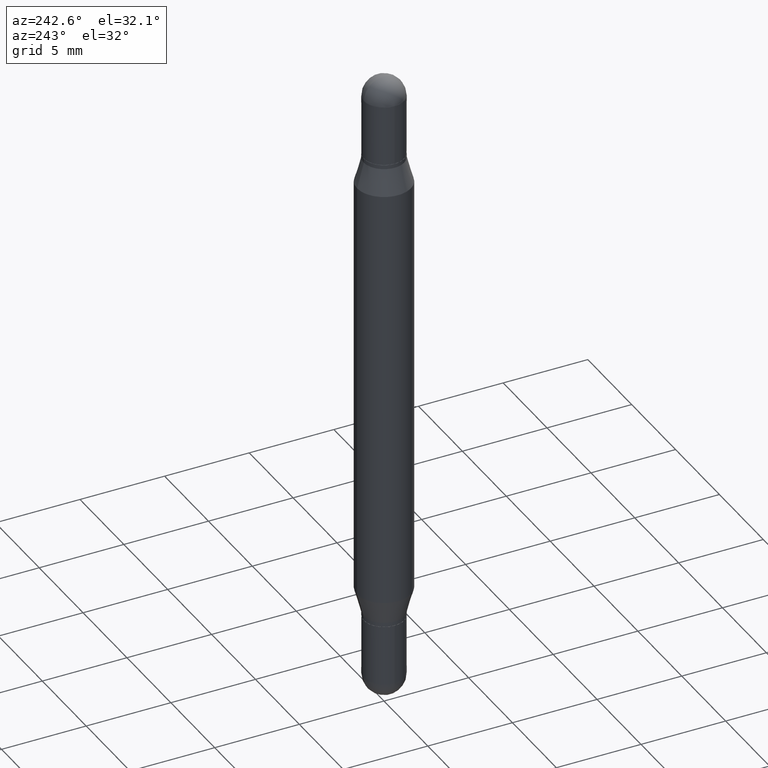
[diagram: clean part render]
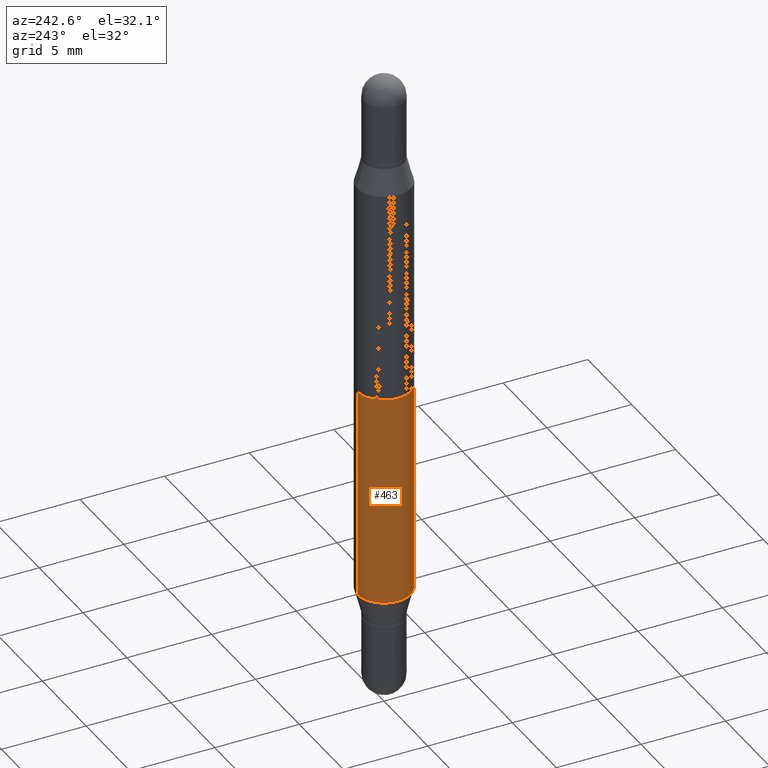
[diagram: same view with one face highlighted and labeled with its STEP entity id]
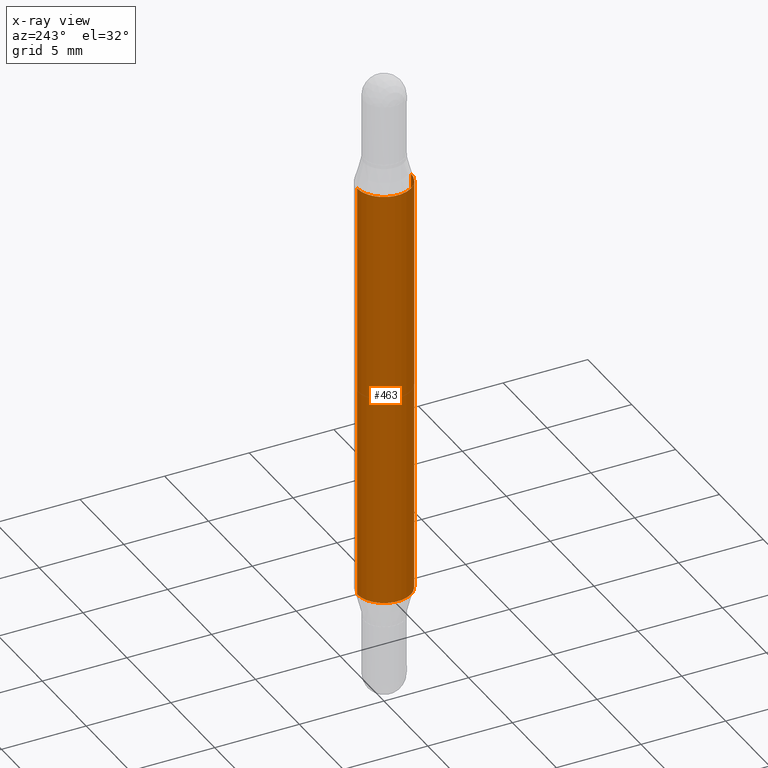
[diagram: x-ray of the same camera — body ghosted, the highlighted face saturated]
A machine part, auxiliary view. The second image highlights one B-rep face of the part: STEP entity #463.
The next image is the same camera in x-ray: the body ghosted, the highlighted face saturated — about 0% of this face is hidden behind the body in this view.
In plain terms, the highlighted cylindrical surface (edge-blend (fillet) strip) has radius 1.5875 mm, axis along (-0, -0, -1).
Its self-contained STEP definition (entity closure, byte-faithful):
#13 = ORIENTED_EDGE ( 'NONE', *, *, #359, .T. ) ;
#82 = FACE_OUTER_BOUND ( 'NONE', #450, .T. ) ;
#87 = DIRECTION ( 'NONE',  ( -2.445369915949094942E-29, -3.479472850531334102E-15, -1.000000000000000000 ) ) ;
#100 = CARTESIAN_POINT ( 'NONE',  ( 4.287811248607206733E-16, 0.06249999999999477501, -1.499999999999999778 ) ) ;
#107 = ORIENTED_EDGE ( 'NONE', *, *, #366, .F. ) ;
#139 = VECTOR ( 'NONE', #528, 39.37007874015748143 ) ;
#141 = CIRCLE ( 'NONE', #196, 0.06250000000000000000 ) ;
#170 = LINE ( 'NONE', #100, #802 ) ;
#196 = AXIS2_PLACEMENT_3D ( 'NONE', #708, #201, #871 ) ;
#201 = DIRECTION ( 'NONE',  ( 2.445369915949094661E-29, 3.479472850531333708E-15, 1.000000000000000000 ) ) ;
#216 = EDGE_CURVE ( 'NONE', #670, #490, #809, .T. ) ;
#282 = DIRECTION ( 'NONE',  ( -6.982962677686265922E-15, -1.000000000000000000, 4.370956789862821150E-15 ) ) ;
#344 = DIRECTION ( 'NONE',  ( -2.445369915949094661E-29, -3.479472850531333708E-15, -1.000000000000000000 ) ) ;
#359 = EDGE_CURVE ( 'NONE', #1043, #670, #170, .T. ) ;
#366 = EDGE_CURVE ( 'NONE', #497, #490, #690, .T. ) ;
#425 = CARTESIAN_POINT ( 'NONE',  ( 0.000000000000000000, -5.228321854365729194E-15, -1.499999999999999556 ) ) ;
#450 = EDGE_LOOP ( 'NONE', ( #950, #13, #606, #107 ) ) ;
#463 = ADVANCED_FACE ( 'NONE', ( #82 ), #686, .T. ) ;
#474 = CARTESIAN_POINT ( 'NONE',  ( 4.287811248607390144E-16, 0.06249999999999565625, -1.244780007401925959 ) ) ;
#490 = VERTEX_POINT ( 'NONE', #977 ) ;
#497 = VERTEX_POINT ( 'NONE', #810 ) ;
#504 = AXIS2_PLACEMENT_3D ( 'NONE', #740, #1017, #939 ) ;
#528 = DIRECTION ( 'NONE',  ( -2.445369915949094942E-29, -3.479472850531334102E-15, -1.000000000000000000 ) ) ;
#606 = ORIENTED_EDGE ( 'NONE', *, *, #216, .T. ) ;
#670 = VERTEX_POINT ( 'NONE', #474 ) ;
#686 = CYLINDRICAL_SURFACE ( 'NONE', #729, 0.06250000000000000000 ) ;
#690 = LINE ( 'NONE', #1030, #139 ) ;
#708 = CARTESIAN_POINT ( 'NONE',  ( 3.043947582075560243E-29, -8.971436137265360818E-16, -0.2552199925980738748 ) ) ;
#729 = AXIS2_PLACEMENT_3D ( 'NONE', #425, #344, #282 ) ;
#740 = CARTESIAN_POINT ( 'NONE',  ( 3.043947582075560243E-29, -4.346302448130172457E-15, -1.244780007401925737 ) ) ;
#802 = VECTOR ( 'NONE', #87, 39.37007874015748143 ) ;
#809 = CIRCLE ( 'NONE', #504, 0.06250000000000000000 ) ;
#810 = CARTESIAN_POINT ( 'NONE',  ( -4.364351673553612490E-16, -0.06250000000000090206, -0.2552199925980737083 ) ) ;
#871 = DIRECTION ( 'NONE',  ( -6.982962677686265922E-15, -1.000000000000000000, 3.278217592397115862E-15 ) ) ;
#939 = DIRECTION ( 'NONE',  ( -6.982962677686265922E-15, -1.000000000000000000, 4.370956789862821150E-15 ) ) ;
#950 = ORIENTED_EDGE ( 'NONE', *, *, #1033, .F. ) ;
#977 = CARTESIAN_POINT ( 'NONE',  ( -4.364351673553611504E-16, -0.06250000000000434375, -1.244780007401925515 ) ) ;
#1017 = DIRECTION ( 'NONE',  ( -2.445369915949094661E-29, 3.491622955289640128E-15, 1.000000000000000000 ) ) ;
#1030 = CARTESIAN_POINT ( 'NONE',  ( -4.364351673553916201E-16, -0.06250000000000521805, -1.499999999999999334 ) ) ;
#1033 = EDGE_CURVE ( 'NONE', #1043, #497, #141, .T. ) ;
#1043 = VERTEX_POINT ( 'NONE', #1053 ) ;
#1053 = CARTESIAN_POINT ( 'NONE',  ( 4.287811248607510938E-16, 0.06249999999999910488, -0.2552199925980740969 ) ) ;